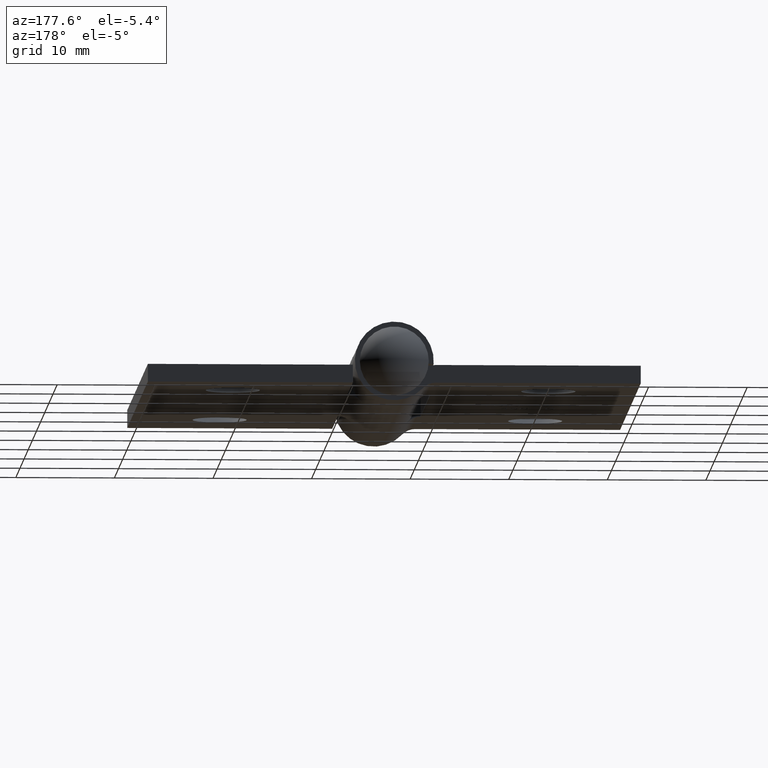
[diagram: clean part render]
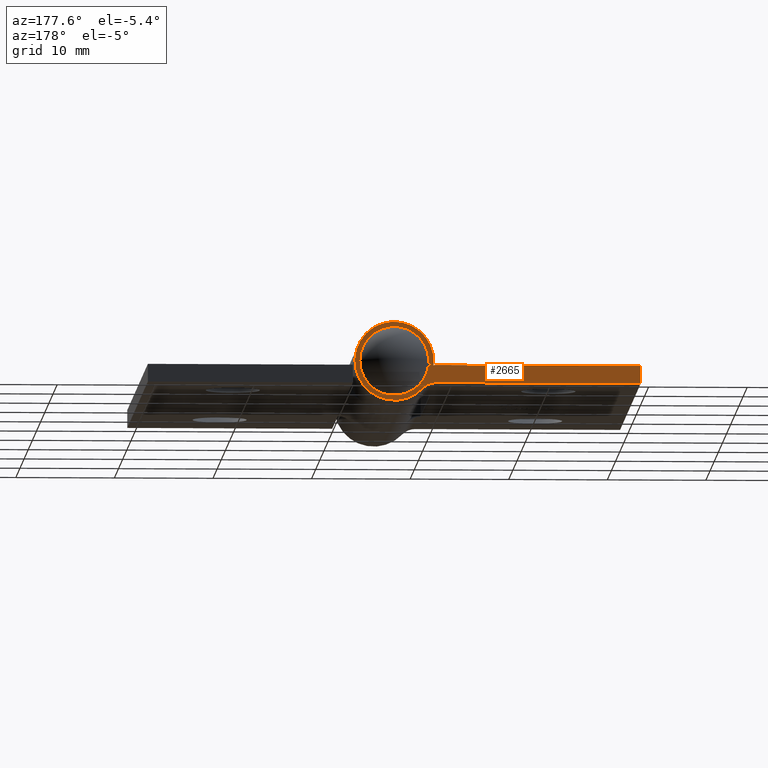
[diagram: same view with one face highlighted and labeled with its STEP entity id]
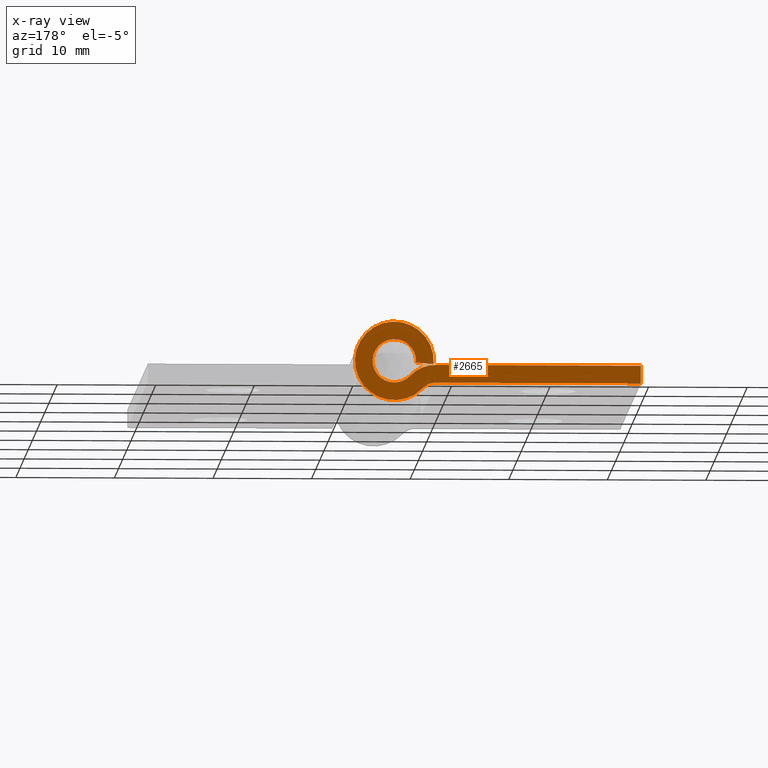
[diagram: x-ray of the same camera — body ghosted, the highlighted face saturated]
A machine part, auxiliary view. The second image highlights one B-rep face of the part: STEP entity #2665.
The next image is the same camera in x-ray: the body ghosted, the highlighted face saturated — about 0% of this face is hidden behind the body in this view.
In plain terms, the highlighted planar face has unit normal (0, -1, 0).
Its self-contained STEP definition (entity closure, byte-faithful):
#216 = CARTESIAN_POINT ( 'NONE',  ( -4.199999999999997513, 25.00000000000000000, -4.000000000000000000 ) ) ;
#585 = ORIENTED_EDGE ( 'NONE', *, *, #1791, .T. ) ;
#742 = VERTEX_POINT ( 'NONE', #2083 ) ;
#1618 = CIRCLE ( 'NONE', #4521, 3.999999999999998224 ) ;
#1791 = EDGE_CURVE ( 'NONE', #8555, #4293, #3444, .T. ) ;
#1833 = DIRECTION ( 'NONE',  ( 0.000000000000000000, 0.000000000000000000, 1.000000000000000000 ) ) ;
#1917 = VECTOR ( 'NONE', #11813, 1000.000000000000000 ) ;
#1973 = CARTESIAN_POINT ( 'NONE',  ( -4.199999999999997513, 25.00000000000000000, -4.000000000000000000 ) ) ;
#2035 = CIRCLE ( 'NONE', #8668, 3.600000000000000089 ) ;
#2043 = CARTESIAN_POINT ( 'NONE',  ( -4.199999999999997513, 25.00000000000000000, -4.000000000000000000 ) ) ;
#2083 = CARTESIAN_POINT ( 'NONE',  ( -3.988734135035824302, 25.00000000000000000, -0.2999999999999999334 ) ) ;
#2117 = DIRECTION ( 'NONE',  ( 0.000000000000000000, -1.000000000000000000, 0.000000000000000000 ) ) ;
#2634 = CARTESIAN_POINT ( 'NONE',  ( -3.988734135035826078, 25.00000000000000000, -0.3000000000000001554 ) ) ;
#2665 = ADVANCED_FACE ( 'NONE', ( #11891 ), #3094, .F. ) ;
#3094 = PLANE ( 'NONE',  #9389 ) ;
#3346 = ORIENTED_EDGE ( 'NONE', *, *, #5081, .T. ) ;
#3444 = LINE ( 'NONE', #6435, #10891 ) ;
#3584 = DIRECTION ( 'NONE',  ( -0.000000000000000000, -1.000000000000000000, -0.000000000000000000 ) ) ;
#3900 = DIRECTION ( 'NONE',  ( 0.000000000000000000, 0.000000000000000000, -1.000000000000000000 ) ) ;
#4200 = VERTEX_POINT ( 'NONE', #4226 ) ;
#4226 = CARTESIAN_POINT ( 'NONE',  ( -2.896551724137928385, 25.00000000000000000, -2.758620689655172598 ) ) ;
#4293 = VERTEX_POINT ( 'NONE', #7913 ) ;
#4443 = EDGE_LOOP ( 'NONE', ( #585, #8602, #11760, #5723, #6939, #9616, #9704, #3346 ) ) ;
#4521 = AXIS2_PLACEMENT_3D ( 'NONE', #11188, #5848, #5728 ) ;
#4599 = CARTESIAN_POINT ( 'NONE',  ( -25.00000000000000000, 25.00000000000000000, -0.4000000000000001887 ) ) ;
#5081 = EDGE_CURVE ( 'NONE', #6867, #8555, #10866, .T. ) ;
#5279 = DIRECTION ( 'NONE',  ( -1.000000000000000000, -0.000000000000000000, -0.000000000000000000 ) ) ;
#5461 = DIRECTION ( 'NONE',  ( -0.000000000000000000, -0.000000000000000000, 1.000000000000000000 ) ) ;
#5684 = EDGE_CURVE ( 'NONE', #7008, #6643, #9140, .T. ) ;
#5723 = ORIENTED_EDGE ( 'NONE', *, *, #5684, .T. ) ;
#5728 = DIRECTION ( 'NONE',  ( 0.000000000000000000, 0.000000000000000000, 1.000000000000000000 ) ) ;
#5848 = DIRECTION ( 'NONE',  ( 0.000000000000000000, 1.000000000000000000, 0.000000000000000000 ) ) ;
#6210 = EDGE_CURVE ( 'NONE', #4200, #6867, #10408, .T. ) ;
#6305 = CARTESIAN_POINT ( 'NONE',  ( -4.199999999999996625, 25.00000000000000000, -0.4000000000000001887 ) ) ;
#6435 = CARTESIAN_POINT ( 'NONE',  ( -25.00000000000000000, 25.00000000000000000, -0.4000000000000001887 ) ) ;
#6527 = CARTESIAN_POINT ( 'NONE',  ( -1.593103448275860368, 25.00000000000000000, -1.517241379310343641 ) ) ;
#6632 = DIRECTION ( 'NONE',  ( 0.000000000000000000, -0.000000000000000000, -1.000000000000000000 ) ) ;
#6643 = VERTEX_POINT ( 'NONE', #7928 ) ;
#6665 = DIRECTION ( 'NONE',  ( 1.000000000000000000, 0.000000000000000000, 0.000000000000000000 ) ) ;
#6867 = VERTEX_POINT ( 'NONE', #10915 ) ;
#6939 = ORIENTED_EDGE ( 'NONE', *, *, #7778, .T. ) ;
#6986 = AXIS2_PLACEMENT_3D ( 'NONE', #2043, #10374, #11113 ) ;
#7008 = VERTEX_POINT ( 'NONE', #6527 ) ;
#7388 = VERTEX_POINT ( 'NONE', #6305 ) ;
#7778 = EDGE_CURVE ( 'NONE', #6643, #742, #9954, .T. ) ;
#7913 = CARTESIAN_POINT ( 'NONE',  ( -25.00000000000000000, 25.00000000000000000, -0.4000000000000001887 ) ) ;
#7928 = CARTESIAN_POINT ( 'NONE',  ( -2.193803774269702522, 25.00000000000000000, -0.1649999999999996192 ) ) ;
#8458 = DIRECTION ( 'NONE',  ( 0.000000000000000000, 1.000000000000000000, -0.000000000000000000 ) ) ;
#8555 = VERTEX_POINT ( 'NONE', #10864 ) ;
#8567 = VECTOR ( 'NONE', #5279, 1000.000000000000000 ) ;
#8577 = AXIS2_PLACEMENT_3D ( 'NONE', #11844, #3584, #1833 ) ;
#8602 = ORIENTED_EDGE ( 'NONE', *, *, #8626, .T. ) ;
#8626 = EDGE_CURVE ( 'NONE', #4293, #7388, #11090, .T. ) ;
#8668 = AXIS2_PLACEMENT_3D ( 'NONE', #1973, #8458, #3900 ) ;
#9140 = CIRCLE ( 'NONE', #8577, 2.199999999999997957 ) ;
#9389 = AXIS2_PLACEMENT_3D ( 'NONE', #216, #2117, #6632 ) ;
#9508 = VECTOR ( 'NONE', #6665, 1000.000000000000000 ) ;
#9616 = ORIENTED_EDGE ( 'NONE', *, *, #10208, .T. ) ;
#9704 = ORIENTED_EDGE ( 'NONE', *, *, #6210, .T. ) ;
#9804 = CARTESIAN_POINT ( 'NONE',  ( -25.00000000000000000, 25.00000000000000000, -2.200000000000000178 ) ) ;
#9954 = LINE ( 'NONE', #2634, #1917 ) ;
#10208 = EDGE_CURVE ( 'NONE', #742, #4200, #1618, .T. ) ;
#10374 = DIRECTION ( 'NONE',  ( -0.000000000000000000, -1.000000000000000000, 0.000000000000000000 ) ) ;
#10408 = CIRCLE ( 'NONE', #6986, 1.799999999999999600 ) ;
#10864 = CARTESIAN_POINT ( 'NONE',  ( -25.00000000000000000, 25.00000000000000000, -2.200000000000000178 ) ) ;
#10866 = LINE ( 'NONE', #9804, #8567 ) ;
#10891 = VECTOR ( 'NONE', #5461, 1000.000000000000000 ) ;
#10915 = CARTESIAN_POINT ( 'NONE',  ( -4.199999999999997513, 25.00000000000000000, -2.200000000000000178 ) ) ;
#11000 = EDGE_CURVE ( 'NONE', #7388, #7008, #2035, .T. ) ;
#11090 = LINE ( 'NONE', #4599, #9508 ) ;
#11113 = DIRECTION ( 'NONE',  ( 0.000000000000000000, 0.000000000000000000, -1.000000000000000000 ) ) ;
#11188 = CARTESIAN_POINT ( 'NONE',  ( 0.000000000000000000, 25.00000000000000000, 0.000000000000000000 ) ) ;
#11760 = ORIENTED_EDGE ( 'NONE', *, *, #11000, .T. ) ;
#11813 = DIRECTION ( 'NONE',  ( -0.9971835337589565196, -0.000000000000000000, -0.07500000000000020539 ) ) ;
#11844 = CARTESIAN_POINT ( 'NONE',  ( 0.000000000000000000, 25.00000000000000000, 0.000000000000000000 ) ) ;
#11891 = FACE_OUTER_BOUND ( 'NONE', #4443, .T. ) ;